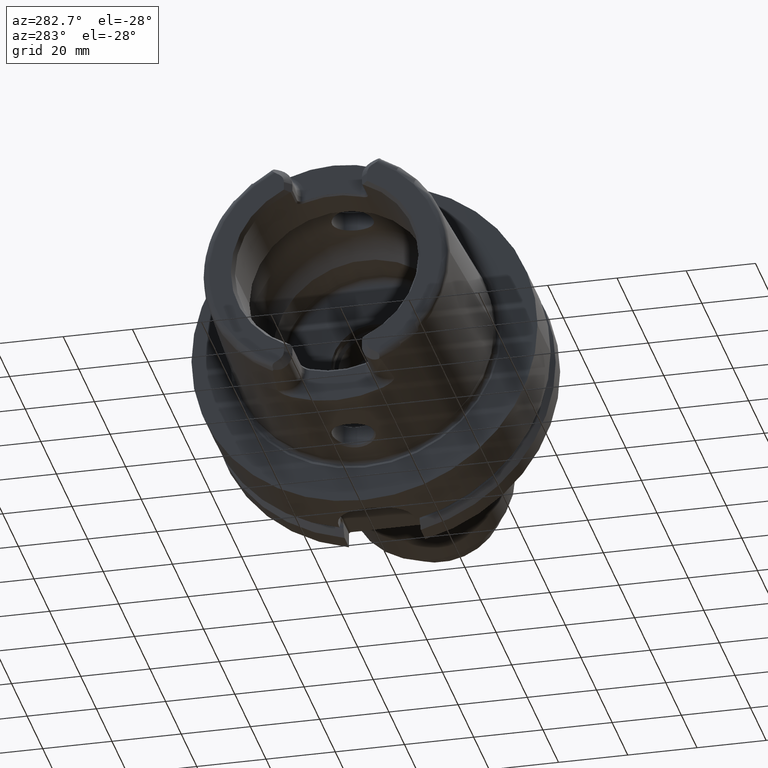
[diagram: clean part render]
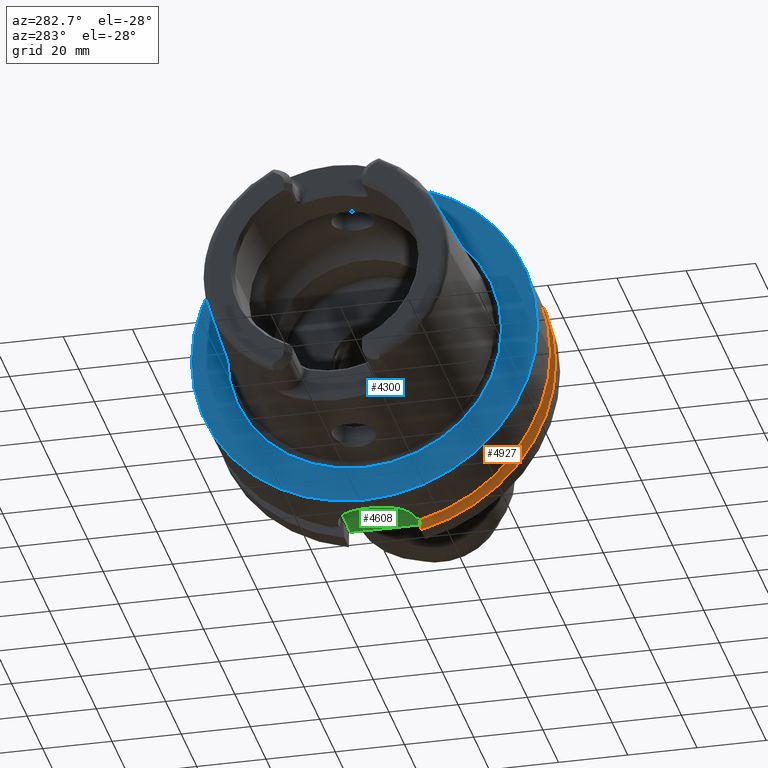
[diagram: same view with three faces highlighted in distinct colors, each labeled with its STEP entity id]
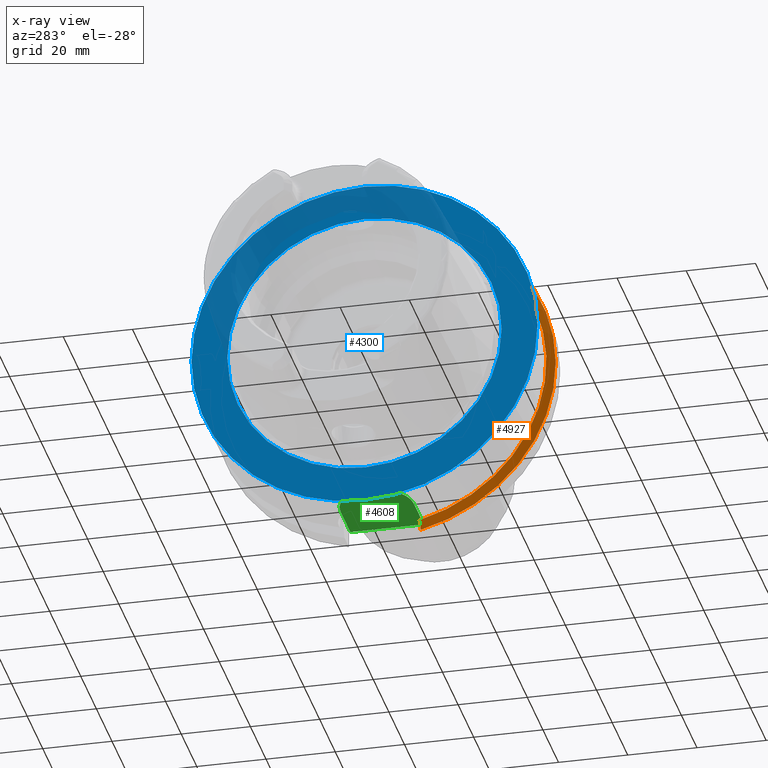
[diagram: x-ray of the same camera — body ghosted, the three highlighted faces saturated]
A machine part, auxiliary view with three faces highlighted in distinct colors.
The next image is the same camera in x-ray (body ghosted, the three faces saturated) — at least one of them is partly hidden behind the body in this view.
Their STEP definitions:

[orange] entity #4927 — the highlighted conical surface has half-angle 60 deg.
#1670=CARTESIAN_POINT('',(2.1875E1,-3.571640491003E1,3.15E1));
#1671=CARTESIAN_POINT('',(2.201925574841E1,-3.604955434192E1,3.15E1));
#1672=CARTESIAN_POINT('',(2.231322476087E1,-3.672437326077E1,3.15E1));
#1673=CARTESIAN_POINT('',(2.277010201186E1,-3.776083400964E1,3.15E1));
#1674=CARTESIAN_POINT('',(2.308650936123E1,-3.847048452534E1,3.15E1));
#1675=CARTESIAN_POINT('',(2.324759526419E1,-3.882975663071E1,3.15E1));
#1677=CARTESIAN_POINT('',(2.324759526419E1,0.E0,0.E0));
#1678=DIRECTION('',(1.E0,0.E0,0.E0));
#1679=DIRECTION('',(0.E0,-7.765951326142E-1,6.3E-1));
#1680=AXIS2_PLACEMENT_3D('',#1677,#1678,#1679);
#1682=CARTESIAN_POINT('',(2.1875E1,-1.1E1,-4.633477721644E1));
#1683=CARTESIAN_POINT('',(2.202318700409E1,-1.1E1,-4.659857839127E1));
#1684=CARTESIAN_POINT('',(2.232244181881E1,-1.1E1,-4.713106867413E1));
#1685=CARTESIAN_POINT('',(2.277988963764E1,-1.1E1,-4.794432689775E1));
#1686=CARTESIAN_POINT('',(2.309072380685E1,-1.1E1,-4.849646015371E1));
#1687=CARTESIAN_POINT('',(2.324759526419E1,-1.1E1,-4.877499359303E1));
#1689=CARTESIAN_POINT('',(2.1875E1,0.E0,0.E0));
#1690=DIRECTION('',(-1.E0,0.E0,0.E0));
#1691=DIRECTION('',(0.E0,-2.309827916554E-1,-9.729578356533E-1));
#1692=AXIS2_PLACEMENT_3D('',#1689,#1690,#1691);
#3168=CARTESIAN_POINT('',(2.324759526419E1,-1.1E1,-4.877499359303E1));
#3170=VERTEX_POINT('',#3168);
#3190=CARTESIAN_POINT('',(2.1875E1,-1.1E1,-4.633477721644E1));
#3191=VERTEX_POINT('',#3190);
#3218=CARTESIAN_POINT('',(2.324759526419E1,-3.882975663071E1,3.15E1));
#3220=VERTEX_POINT('',#3218);
#3242=CARTESIAN_POINT('',(2.1875E1,-3.571640491003E1,3.15E1));
#3243=VERTEX_POINT('',#3242);
#4916=CARTESIAN_POINT('',(2.256129763210E1,0.E0,0.E0));
#4917=DIRECTION('',(1.E0,0.E0,0.E0));
#4918=DIRECTION('',(0.E0,-1.E0,0.E0));
#4919=AXIS2_PLACEMENT_3D('',#4916,#4917,#4918);
#4920=CONICAL_SURFACE('',#4919,4.881129763210E1,6.E1);
#4921=ORIENTED_EDGE('',*,*,#4436,.T.);
#4922=ORIENTED_EDGE('',*,*,#4479,.T.);
#4923=ORIENTED_EDGE('',*,*,#4630,.F.);
#4924=ORIENTED_EDGE('',*,*,#4881,.T.);
#4925=EDGE_LOOP('',(#4921,#4922,#4923,#4924));
#4926=FACE_OUTER_BOUND('',#4925,.F.);
#4927=ADVANCED_FACE('',(#4926),#4920,.T.);
#1676=B_SPLINE_CURVE_WITH_KNOTS('',3,(#1670,#1671,#1672,#1673,#1674,#1675),
.UNSPECIFIED.,.F.,.F.,(4,1,1,4),(0.E0,3.333333333333E-1,6.666666666667E-1,1.E0),
.UNSPECIFIED.);
#1681=CIRCLE('',#1680,5.E1);
#1688=B_SPLINE_CURVE_WITH_KNOTS('',3,(#1682,#1683,#1684,#1685,#1686,#1687),
.UNSPECIFIED.,.F.,.F.,(4,1,1,4),(0.E0,3.333333333333E-1,6.666666666667E-1,1.E0),
.UNSPECIFIED.);
#1693=CIRCLE('',#1692,4.762259526419E1);
#4436=EDGE_CURVE('',#3243,#3220,#1676,.T.);
#4479=EDGE_CURVE('',#3220,#3170,#1681,.T.);
#4630=EDGE_CURVE('',#3191,#3170,#1688,.T.);
#4881=EDGE_CURVE('',#3191,#3243,#1693,.T.);

[blue] entity #4300 — the highlighted planar face has unit normal (1, 0, 0).
#905=CARTESIAN_POINT('',(2.842170943040E-14,0.E0,0.E0));
#906=DIRECTION('',(1.E0,0.E0,0.E0));
#907=DIRECTION('',(0.E0,1.E0,0.E0));
#908=AXIS2_PLACEMENT_3D('',#905,#906,#907);
#910=CARTESIAN_POINT('',(2.842170943040E-14,0.E0,0.E0));
#911=DIRECTION('',(-1.E0,0.E0,0.E0));
#912=DIRECTION('',(0.E0,1.E0,0.E0));
#913=AXIS2_PLACEMENT_3D('',#910,#911,#912);
#915=CARTESIAN_POINT('',(0.E0,0.E0,0.E0));
#916=DIRECTION('',(-1.E0,0.E0,0.E0));
#917=DIRECTION('',(0.E0,-1.E0,0.E0));
#918=AXIS2_PLACEMENT_3D('',#915,#916,#917);
#920=CARTESIAN_POINT('',(0.E0,0.E0,0.E0));
#921=DIRECTION('',(-1.E0,0.E0,0.E0));
#922=DIRECTION('',(0.E0,1.E0,0.E0));
#923=AXIS2_PLACEMENT_3D('',#920,#921,#922);
#2855=CARTESIAN_POINT('',(2.842170943040E-14,5.E1,0.E0));
#2856=CARTESIAN_POINT('',(2.842170943040E-14,-5.E1,0.E0));
#2857=VERTEX_POINT('',#2855);
#2858=VERTEX_POINT('',#2856);
#2883=CARTESIAN_POINT('',(0.E0,-3.963225E1,0.E0));
#2884=VERTEX_POINT('',#2883);
#2885=CARTESIAN_POINT('',(0.E0,3.963225E1,0.E0));
#2886=VERTEX_POINT('',#2885);
#4285=CARTESIAN_POINT('',(0.E0,0.E0,0.E0));
#4286=DIRECTION('',(1.E0,0.E0,0.E0));
#4287=DIRECTION('',(0.E0,-1.E0,0.E0));
#4288=AXIS2_PLACEMENT_3D('',#4285,#4286,#4287);
#4289=PLANE('',#4288);
#4291=ORIENTED_EDGE('',*,*,#4290,.T.);
#4293=ORIENTED_EDGE('',*,*,#4292,.F.);
#4294=EDGE_LOOP('',(#4291,#4293));
#4295=FACE_OUTER_BOUND('',#4294,.F.);
#4296=ORIENTED_EDGE('',*,*,#4280,.T.);
#4297=ORIENTED_EDGE('',*,*,#4264,.T.);
#4298=EDGE_LOOP('',(#4296,#4297));
#4299=FACE_BOUND('',#4298,.F.);
#4300=ADVANCED_FACE('',(#4295,#4299),#4289,.F.);
#909=CIRCLE('',#908,5.E1);
#914=CIRCLE('',#913,5.E1);
#919=CIRCLE('',#918,3.963225E1);
#924=CIRCLE('',#923,3.963225E1);
#4264=EDGE_CURVE('',#2886,#2884,#924,.T.);
#4280=EDGE_CURVE('',#2884,#2886,#919,.T.);
#4290=EDGE_CURVE('',#2857,#2858,#909,.T.);
#4292=EDGE_CURVE('',#2857,#2858,#914,.T.);

[green] entity #4608 — the highlighted planar face has unit normal (0, 0, -1).
#1083=DIRECTION('',(0.E0,-1.E0,0.E0));
#1084=VECTOR('',#1083,2.12E1);
#1085=CARTESIAN_POINT('',(2.9E1,1.06E1,-4.4E1));
#1086=LINE('',#1085,#1084);
#1267=DIRECTION('',(1.E0,3.248915666844E-10,-3.259565609311E-10));
#1268=VECTOR('',#1267,1.299999999828E1);
#1269=CARTESIAN_POINT('',(1.600000000172E1,-1.060000000422E1,
-4.399999999576E1));
#1270=LINE('',#1269,#1268);
#1271=DIRECTION('',(-1.E0,3.244620982657E-10,3.263850728660E-10));
#1272=VECTOR('',#1271,1.299999999796E1);
#1273=CARTESIAN_POINT('',(2.9E1,1.06E1,-4.4E1));
#1274=LINE('',#1273,#1272);
#1275=CARTESIAN_POINT('',(1.6E1,0.E0,-4.399999965713E1));
#1276=DIRECTION('',(0.E0,0.E0,1.E0));
#1277=DIRECTION('',(0.E0,1.E0,0.E0));
#1278=AXIS2_PLACEMENT_3D('',#1275,#1276,#1277);
#3116=CARTESIAN_POINT('',(2.9E1,1.06E1,-4.4E1));
#3118=VERTEX_POINT('',#3116);
#3121=CARTESIAN_POINT('',(2.9E1,-1.06E1,-4.4E1));
#3123=VERTEX_POINT('',#3121);
#3196=CARTESIAN_POINT('',(1.600000000172E1,-1.060000000422E1,
-4.399999999576E1));
#3197=VERTEX_POINT('',#3196);
#3202=CARTESIAN_POINT('',(1.600000000204E1,1.060000000422E1,-4.399999999576E1));
#3203=VERTEX_POINT('',#3202);
#4597=CARTESIAN_POINT('',(0.E0,0.E0,-4.4E1));
#4598=DIRECTION('',(0.E0,0.E0,-1.E0));
#4599=DIRECTION('',(1.E0,0.E0,0.E0));
#4600=AXIS2_PLACEMENT_3D('',#4597,#4598,#4599);
#4601=PLANE('',#4600);
#4602=ORIENTED_EDGE('',*,*,#4589,.T.);
#4603=ORIENTED_EDGE('',*,*,#4410,.F.);
#4604=ORIENTED_EDGE('',*,*,#4563,.T.);
#4605=ORIENTED_EDGE('',*,*,#4575,.T.);
#4606=EDGE_LOOP('',(#4602,#4603,#4604,#4605));
#4607=FACE_OUTER_BOUND('',#4606,.F.);
#4608=ADVANCED_FACE('',(#4607),#4601,.T.);
#1279=CIRCLE('',#1278,1.059999968251E1);
#4410=EDGE_CURVE('',#3118,#3123,#1086,.T.);
#4563=EDGE_CURVE('',#3118,#3203,#1274,.T.);
#4575=EDGE_CURVE('',#3203,#3197,#1279,.T.);
#4589=EDGE_CURVE('',#3197,#3123,#1270,.T.);